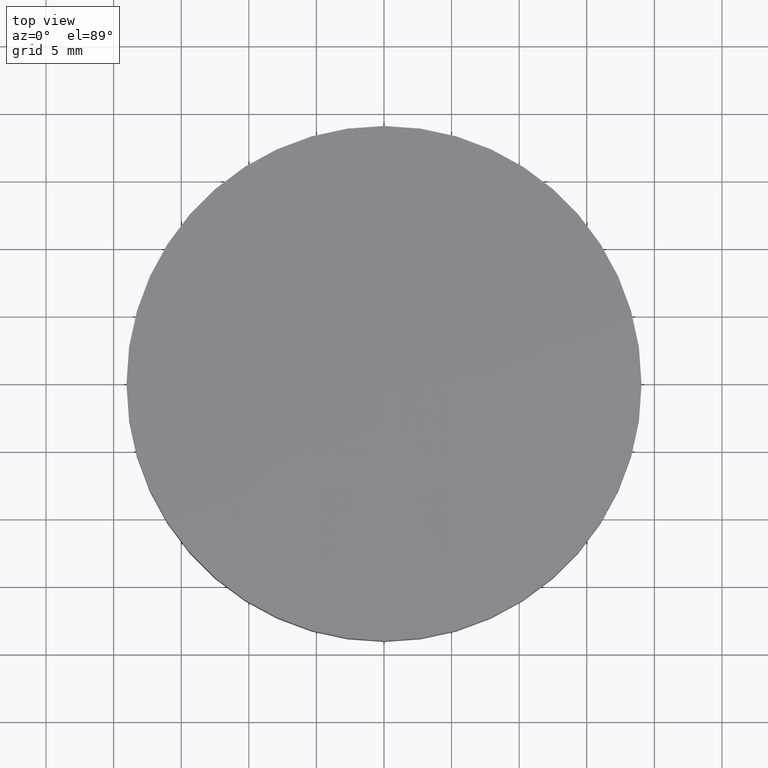
[diagram: clean part render]
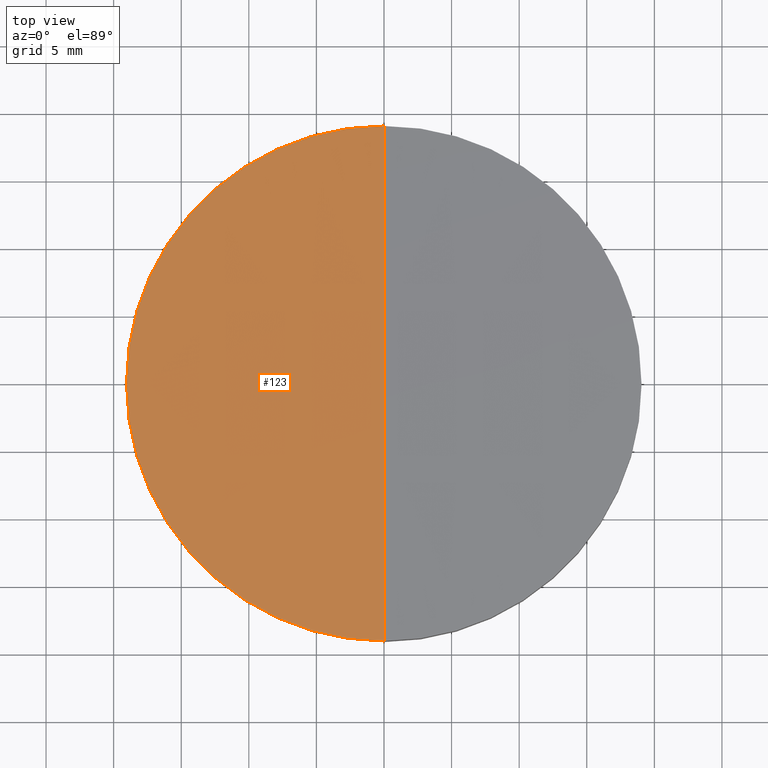
[diagram: same view with one face highlighted and labeled with its STEP entity id]
A machine part, top view. The second image highlights one B-rep face of the part: STEP entity #123.
In plain terms, the highlighted face is a freeform B-spline surface patch.
Its self-contained STEP definition (entity closure, byte-faithful):
#3 = DIRECTION ( 'NONE',  ( -1.456985596620939900E-018, -6.792982492034799900E-035, -1.000000000000000000 ) ) ;
#13 = CIRCLE ( 'NONE', #24, 19.05000000000000100 ) ;
#24 = AXIS2_PLACEMENT_3D ( 'NONE', #86, #3, #29 ) ;
#26 = CIRCLE ( 'NONE', #42, 19.05000000000000100 ) ;
#29 = DIRECTION ( 'NONE',  ( 1.000000000000000000, 0.0000000000000000000, 0.0000000000000000000 ) ) ;
#34 = DIRECTION ( 'NONE',  ( -1.456985596620939900E-018, -6.792982492034799900E-035, -1.000000000000000000 ) ) ;
#38 = EDGE_CURVE ( 'NONE', #202, #110, #13, .T. ) ;
#42 = AXIS2_PLACEMENT_3D ( 'NONE', #194, #34, #154 ) ;
#46 = DIRECTION ( 'NONE',  ( -1.000000000000000000, 0.0000000000000000000, 0.0000000000000000000 ) ) ;
#54 = CARTESIAN_POINT ( 'NONE',  ( -3.410605131648479900E-013, -19.04999999999755300, 4.825008137824537100 ) ) ;
#55 = EDGE_CURVE ( 'NONE', #68, #202, #26, .T. ) ;
#57 = CARTESIAN_POINT ( 'NONE',  ( -12.77756390800498400, -6.426931750395552500, 5.000708048625989800 ) ) ;
#60 = CARTESIAN_POINT ( 'NONE',  ( -3.410605131648479400E-013, -6.426931750395551600, 5.059745798270032700 ) ) ;
#66 = FACE_OUTER_BOUND ( 'NONE', #206, .T. ) ;
#68 = VERTEX_POINT ( 'NONE', #54 ) ;
#73 = ORIENTED_EDGE ( 'NONE', *, *, #38, .F. ) ;
#81 = CARTESIAN_POINT ( 'NONE',  ( -12.77461966186314300, 19.27857381669847600, 4.761759110022530300 ) ) ;
#82 = ORIENTED_EDGE ( 'NONE', *, *, #55, .F. ) ;
#85 = AXIS2_PLACEMENT_3D ( 'NONE', #198, #46, #290 ) ;
#86 = CARTESIAN_POINT ( 'NONE',  ( -4.656161696687986400E-015, -8.881784197001250400E-016, 4.825008137824579700 ) ) ;
#105 = CARTESIAN_POINT ( 'NONE',  ( -3.410605131648479400E-013, 6.426931750395621800, 5.059745798270030000 ) ) ;
#110 = VERTEX_POINT ( 'NONE', #216 ) ;
#111 = CARTESIAN_POINT ( 'NONE',  ( -6.388918343689621100, -6.426931750395552500, 5.059745798270032700 ) ) ;
#118 = CIRCLE ( 'NONE', #85, 1037.000000000000000 ) ;
#123 = ADVANCED_FACE ( 'NONE', ( #66 ), #161, .T. ) ;
#150 = CARTESIAN_POINT ( 'NONE',  ( -12.77461966186314300, -19.27857381669840800, 4.761759110022530300 ) ) ;
#154 = DIRECTION ( 'NONE',  ( 1.000000000000000000, 0.0000000000000000000, 0.0000000000000000000 ) ) ;
#161 =( BOUNDED_SURFACE ( )  B_SPLINE_SURFACE ( 3, 3, ( 
 ( #277, #211, #150, #172 ),
 ( #60, #111, #57, #258 ),
 ( #105, #190, #192, #280 ),
 ( #212, #255, #81, #254 ) ),
 .UNSPECIFIED., .F., .F., .F. ) 
 B_SPLINE_SURFACE_WITH_KNOTS ( ( 4, 4 ),
 ( 4, 4 ),
 ( 0.0000000000000000000, 1.000000000000000000 ),
 ( 0.0000000000000000000, 1.000000000000000000 ),
 .UNSPECIFIED. ) 
 GEOMETRIC_REPRESENTATION_ITEM ( )  RATIONAL_B_SPLINE_SURFACE ( (
 ( 1.000000000000000000, 0.9999715361965574300, 0.9999715361965574300, 1.000000000000000000),
 ( 0.9998847851211856200, 0.9998563245971967600, 0.9998563245971967600, 0.9998847851211856200),
 ( 0.9998847851211856200, 0.9998563245971967600, 0.9998563245971967600, 0.9998847851211856200),
 ( 1.000000000000000000, 0.9999715361965574300, 0.9999715361965574300, 1.000000000000000000) ) ) 
 REPRESENTATION_ITEM ( '' )  SURFACE ( )  );
#166 = EDGE_CURVE ( 'NONE', #68, #110, #118, .T. ) ;
#172 = CARTESIAN_POINT ( 'NONE',  ( -19.16097500826483800, -19.27857381669841500, 4.643715858214465100 ) ) ;
#190 = CARTESIAN_POINT ( 'NONE',  ( -6.388918343689621100, 6.426931750395622700, 5.059745798270030000 ) ) ;
#192 = CARTESIAN_POINT ( 'NONE',  ( -12.77756390800498400, 6.426931750395622700, 5.000708048625987200 ) ) ;
#194 = CARTESIAN_POINT ( 'NONE',  ( -4.656161696687986400E-015, -8.881784197001250400E-016, 4.825008137824579700 ) ) ;
#198 = CARTESIAN_POINT ( 'NONE',  ( -3.410605131648479900E-013, 1.136868377216160000E-013, -1032.000000000000000 ) ) ;
#202 = VERTEX_POINT ( 'NONE', #213 ) ;
#206 = EDGE_LOOP ( 'NONE', ( #82, #230, #73 ) ) ;
#211 = CARTESIAN_POINT ( 'NONE',  ( -6.387446189191363600, -19.27857381669840800, 4.820783256004100200 ) ) ;
#212 = CARTESIAN_POINT ( 'NONE',  ( -3.410605131648479900E-013, 19.27857381669848300, 4.820783256004102000 ) ) ;
#213 = CARTESIAN_POINT ( 'NONE',  ( -19.05000000000000400, 1.444773732675583000E-015, 4.825008137824579700 ) ) ;
#216 = CARTESIAN_POINT ( 'NONE',  ( -3.410605131648479900E-013, 19.04999999999766700, 4.825008137824537100 ) ) ;
#230 = ORIENTED_EDGE ( 'NONE', *, *, #166, .T. ) ;
#254 = CARTESIAN_POINT ( 'NONE',  ( -19.16097500826483800, 19.27857381669848300, 4.643715858214465100 ) ) ;
#255 = CARTESIAN_POINT ( 'NONE',  ( -6.387446189191363600, 19.27857381669847600, 4.820783256004100200 ) ) ;
#258 = CARTESIAN_POINT ( 'NONE',  ( -19.16539115749159800, -6.426931750395551600, 4.882637590654617600 ) ) ;
#277 = CARTESIAN_POINT ( 'NONE',  ( -3.410605131648479900E-013, -19.27857381669841500, 4.820783256004102000 ) ) ;
#280 = CARTESIAN_POINT ( 'NONE',  ( -19.16539115749159800, 6.426931750395621800, 4.882637590654614900 ) ) ;
#290 = DIRECTION ( 'NONE',  ( 0.0000000000000000000, -1.000000000000000000, 4.282441753616804200E-016 ) ) ;